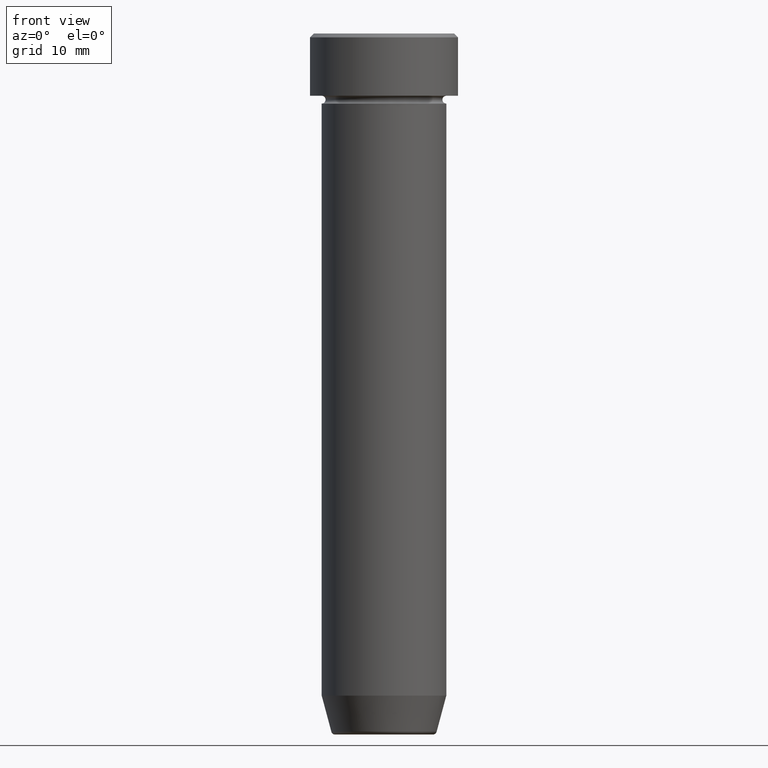
[diagram: clean part render]
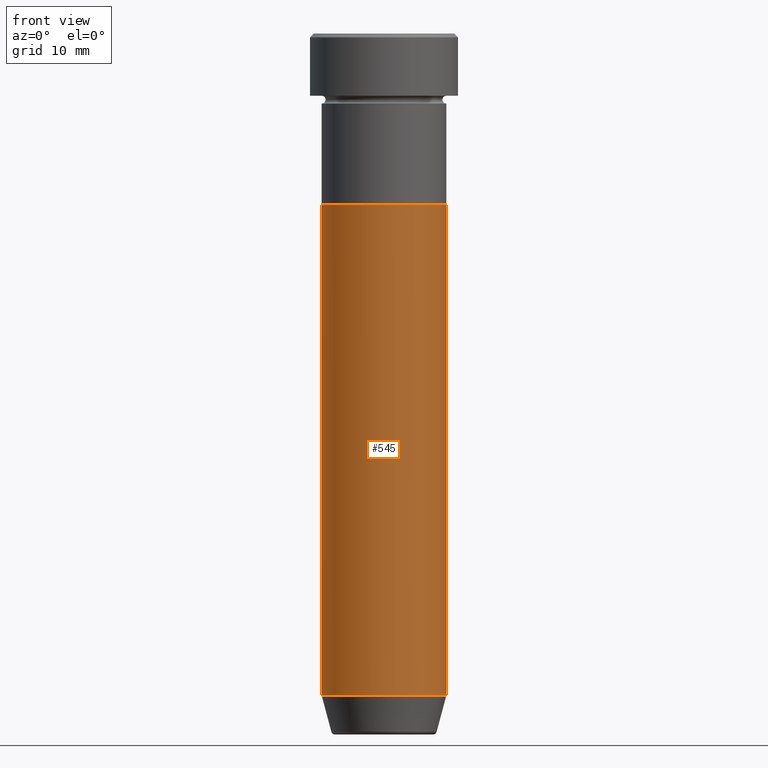
[diagram: same view with one face highlighted and labeled with its STEP entity id]
A machine part, front view. The second image highlights one B-rep face of the part: STEP entity #545.
In plain terms, the highlighted cylindrical surface (partial cylindrical patch) has radius 8 mm, axis along (-0, -0, 1).
Its self-contained STEP definition (entity closure, byte-faithful):
#2 = DIRECTION ( 'NONE',  ( 1.000000000000000000, 0.000000000000000000, 0.000000000000000000 ) ) ;
#12 = ORIENTED_EDGE ( 'NONE', *, *, #390, .F. ) ;
#61 = DIRECTION ( 'NONE',  ( 1.000000000000000000, 0.000000000000000000, 0.000000000000000000 ) ) ;
#65 = ORIENTED_EDGE ( 'NONE', *, *, #231, .T. ) ;
#71 = VECTOR ( 'NONE', #402, 1000.000000000000000 ) ;
#74 = CARTESIAN_POINT ( 'NONE',  ( 8.000000000000000000, 0.000000000000000000, 0.000000000000000000 ) ) ;
#96 = DIRECTION ( 'NONE',  ( -0.000000000000000000, -0.000000000000000000, 1.000000000000000000 ) ) ;
#116 = VECTOR ( 'NONE', #588, 1000.000000000000000 ) ;
#178 = AXIS2_PLACEMENT_3D ( 'NONE', #341, #377, #61 ) ;
#184 = CARTESIAN_POINT ( 'NONE',  ( 0.000000000000000000, 0.000000000000000000, 0.000000000000000000 ) ) ;
#193 = VERTEX_POINT ( 'NONE', #439 ) ;
#231 = EDGE_CURVE ( 'NONE', #420, #193, #596, .T. ) ;
#279 = VERTEX_POINT ( 'NONE', #542 ) ;
#302 = DIRECTION ( 'NONE',  ( -0.000000000000000000, -0.000000000000000000, 1.000000000000000000 ) ) ;
#341 = CARTESIAN_POINT ( 'NONE',  ( 0.000000000000000000, 0.000000000000000000, -22.00000000000000000 ) ) ;
#351 = AXIS2_PLACEMENT_3D ( 'NONE', #533, #302, #485 ) ;
#353 = ORIENTED_EDGE ( 'NONE', *, *, #597, .T. ) ;
#361 = CIRCLE ( 'NONE', #178, 8.000000000000000000 ) ;
#377 = DIRECTION ( 'NONE',  ( -0.000000000000000000, -0.000000000000000000, 1.000000000000000000 ) ) ;
#386 = ORIENTED_EDGE ( 'NONE', *, *, #489, .F. ) ;
#387 = AXIS2_PLACEMENT_3D ( 'NONE', #184, #96, #2 ) ;
#390 = EDGE_CURVE ( 'NONE', #279, #549, #361, .T. ) ;
#402 = DIRECTION ( 'NONE',  ( -0.000000000000000000, -0.000000000000000000, 1.000000000000000000 ) ) ;
#405 = CARTESIAN_POINT ( 'NONE',  ( -8.000000000000000000, 9.797174393178825657E-16, 0.000000000000000000 ) ) ;
#416 = CYLINDRICAL_SURFACE ( 'NONE', #387, 8.000000000000000000 ) ;
#420 = VERTEX_POINT ( 'NONE', #561 ) ;
#439 = CARTESIAN_POINT ( 'NONE',  ( 8.000000000000000000, 0.000000000000000000, -84.99999999999998579 ) ) ;
#466 = EDGE_LOOP ( 'NONE', ( #386, #65, #353, #12 ) ) ;
#485 = DIRECTION ( 'NONE',  ( 1.000000000000000000, 0.000000000000000000, 0.000000000000000000 ) ) ;
#489 = EDGE_CURVE ( 'NONE', #420, #279, #551, .T. ) ;
#509 = CARTESIAN_POINT ( 'NONE',  ( 8.000000000000000000, 0.000000000000000000, -22.00000000000000000 ) ) ;
#521 = LINE ( 'NONE', #74, #71 ) ;
#533 = CARTESIAN_POINT ( 'NONE',  ( 0.000000000000000000, 0.000000000000000000, -84.99999999999998579 ) ) ;
#542 = CARTESIAN_POINT ( 'NONE',  ( -8.000000000000000000, 9.797174393178825657E-16, -22.00000000000000000 ) ) ;
#545 = ADVANCED_FACE ( 'NONE', ( #555 ), #416, .T. ) ;
#549 = VERTEX_POINT ( 'NONE', #509 ) ;
#551 = LINE ( 'NONE', #405, #116 ) ;
#555 = FACE_OUTER_BOUND ( 'NONE', #466, .T. ) ;
#561 = CARTESIAN_POINT ( 'NONE',  ( -8.000000000000000000, 9.797174393178825657E-16, -84.99999999999998579 ) ) ;
#588 = DIRECTION ( 'NONE',  ( -0.000000000000000000, -0.000000000000000000, 1.000000000000000000 ) ) ;
#596 = CIRCLE ( 'NONE', #351, 8.000000000000000000 ) ;
#597 = EDGE_CURVE ( 'NONE', #193, #549, #521, .T. ) ;